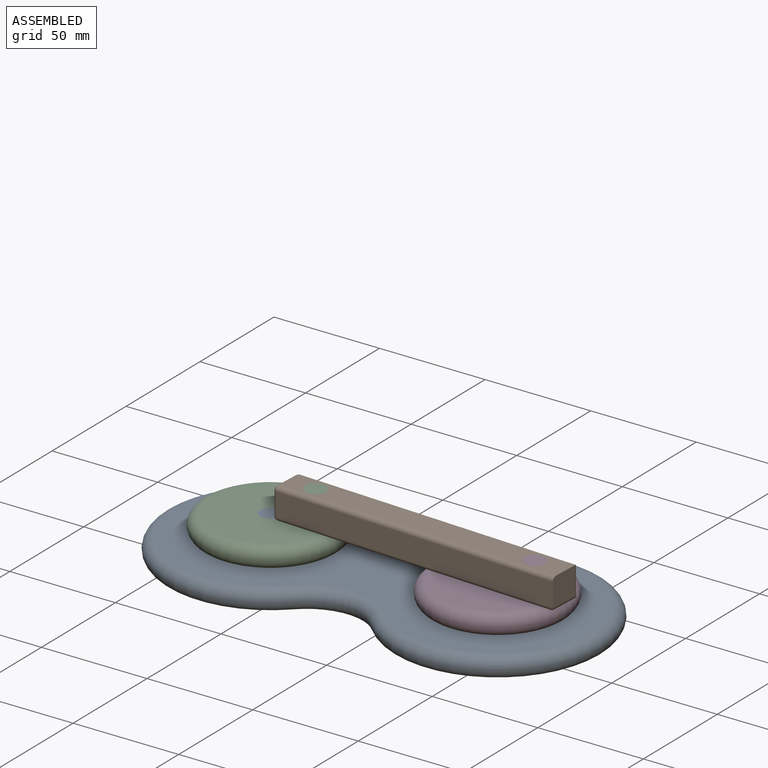
[diagram: assembled view]
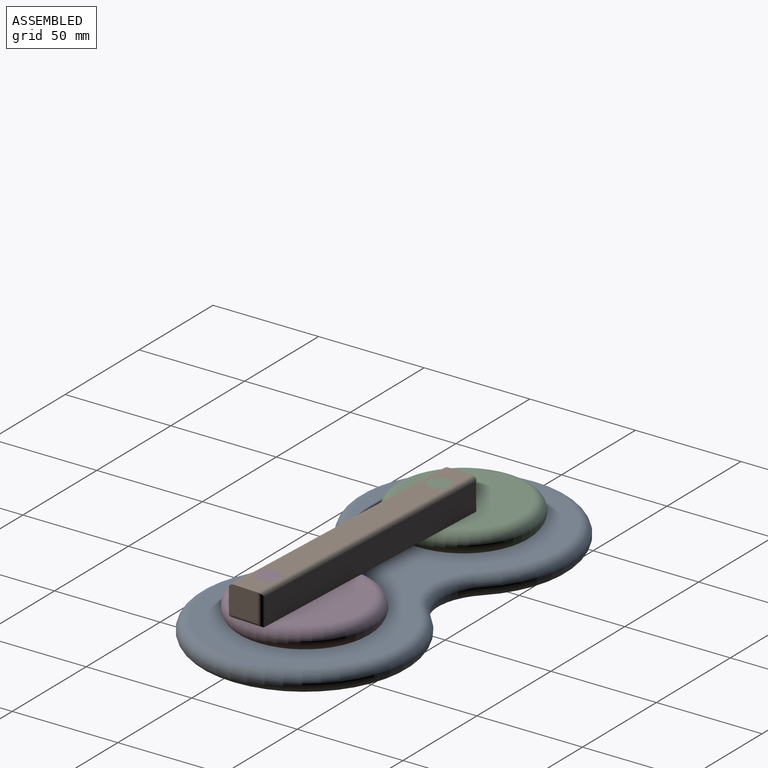
[diagram: assembled view, second angle]
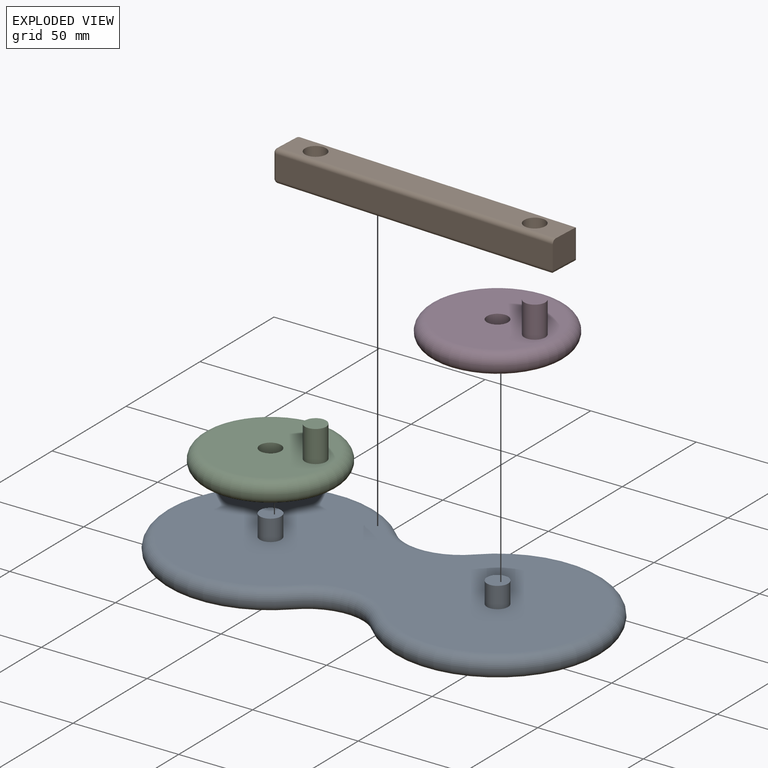
[diagram: exploded view]
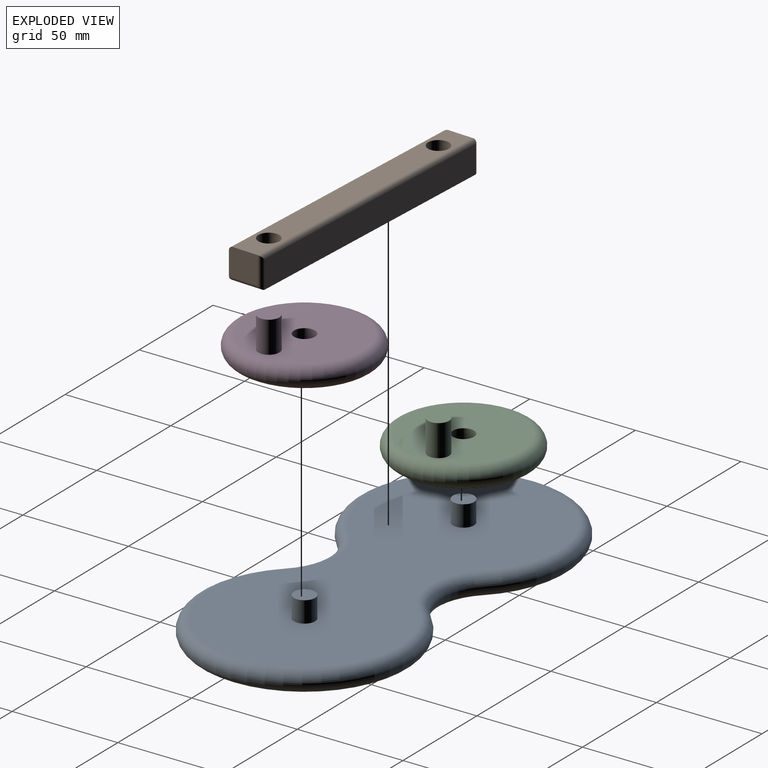
[diagram: exploded view, second angle]
ASSEMBLY  parts=4 mates=4
PART A: 10 faces, bbox 215.7x108.2x20 mm
  f0: plane 197.51x90mm, normal (0,0,1), area 13625.5mm2, adj f2,f4,f6,f7,f8,f9
  f1: plane 197.51x90mm, normal (0,0,-1), area 13782.5mm2, adj f6,f7,f8,f9
  f2: cylinder r=5mm len=10mm, axis (0,0,-1), area 314.2mm2, adj f0,f3
  f3: plane 10x10mm, normal (0,0,1), area 78.5mm2, adj f2
  f4: cylinder r=5mm len=10mm, axis (0,0,-1), area 314.2mm2, adj f0,f5
  f5: plane 10x10mm, normal (0,0,1), area 78.5mm2, adj f4
  f6: torus R=45mm, axis (0,0,1), area 3587.3mm2, adj f0,f1,f7,f8
  f7: torus R=30mm, axis (0,0,1), area 673.2mm2, adj f0,f1,f6,f9
  f8: torus R=30mm, axis (0,0,1), area 673.2mm2, adj f0,f1,f6,f9
  f9: torus R=45mm, axis (0,0,1), area 3587.3mm2, adj f0,f1,f7,f8
PART B: 20 faces, bbox 137.5x16x15 mm
  f0: plane 135.51x12mm, normal (0,0,1), area 1469mm2, adj f3,f6,f7,f13,f17,f19
  f1: plane 12x11mm, normal (-1,0,0), area 132mm2, adj f11,f12,f16,f17
  f2: plane 133.51x14mm, normal (0,0,-1), area 1712mm2, adj f3,f5,f7,f8,f10,f11
  f3: cylinder r=5mm len=15mm, axis (0,0,-1), area 471.2mm2, adj f0,f2
  f4: plane 135.51x11mm, normal (0,-1,0), area 1490.6mm2, adj f6,f10,f16,f19
  f5: plane 133.51x13mm, normal (0,1,0), area 1735.6mm2, adj f2,f9,f12,f13
  f6: plane 14x13mm, normal (1,0,0), area 181.1mm2, adj f0,f4,f8,f9,f19
  f7: cylinder r=5mm len=15mm, axis (0,0,-1), area 471.2mm2, adj f0,f2
  f8: cylinder r=2mm len=16mm, axis (0,1,0), area 45.7mm2, adj f2,f6,f9,f10
  f9: cylinder r=2mm len=15mm, axis (0,0,-1), area 42.6mm2, adj f5,f6,f8,f13
  f10: cylinder r=2mm len=135.51mm, axis (1,0,0), area 423.4mm2, adj f2,f4,f8,f14
  f11: cylinder r=2mm len=14mm, axis (0,-1,0), area 41.7mm2, adj f1,f2,f12,f14
  f12: cylinder r=2mm len=13mm, axis (0,0,1), area 38.6mm2, adj f1,f5,f11,f15
  f13: cylinder r=2mm len=135.51mm, axis (1,0,0), area 423.4mm2, adj f0,f5,f9,f15
  f14: sphere r=2mm, area 6.3mm2, adj f10,f11,f16
  f15: sphere r=2mm, area 6.3mm2, adj f12,f13,f17
  f16: cylinder r=2mm len=11mm, axis (0,0,-1), area 34.6mm2, adj f1,f4,f14,f18
  f17: cylinder r=2mm len=12mm, axis (0,1,0), area 37.7mm2, adj f0,f1,f15,f18
  f18: sphere r=2mm, area 6.3mm2, adj f16,f17,f19
  f19: cylinder r=2mm len=135.51mm, axis (-1,0,0), area 425.7mm2, adj f0,f4,f6,f18
PART C: 6 faces, bbox 70.4x70.4x25 mm
  f0: cylinder r=5mm len=10mm, axis (0,0,-1), area 314.2mm2, adj f1,f2
  f1: plane 55x55mm, normal (0,0,1), area 2218.7mm2, adj f0,f3,f5
  f2: plane 55x55mm, normal (0,0,-1), area 2297.3mm2, adj f0,f5
  f3: cylinder r=5mm len=15mm, axis (0,0,-1), area 471.2mm2, adj f1,f4
  f4: plane 10x10mm, normal (0,0,1), area 78.5mm2, adj f3
  f5: torus R=27.5mm, axis (0,0,1), area 3028.3mm2, adj f1,f2
PART D: 6 faces, bbox 70.4x70.4x25 mm
  f0: cylinder r=5mm len=10mm, axis (0,0,-1), area 314.2mm2, adj f1,f2
  f1: plane 55x55mm, normal (0,0,1), area 2218.7mm2, adj f0,f3,f5
  f2: plane 55x55mm, normal (0,0,-1), area 2297.3mm2, adj f0,f3
  f3: torus R=27.5mm, axis (0,0,1), area 3028.3mm2, adj f1,f2
  f4: plane 10x10mm, normal (0,0,1), area 78.5mm2, adj f5
  f5: cylinder r=5mm len=15mm, axis (0,0,-1), area 471.2mm2, adj f1,f4
PLACE A t=(-15.12,10.45,11.25)mm fixed
PLACE B rot(axis=(0,0,-1),2.7deg) t=(24.69,9.01,11.25)mm
PLACE C rot(axis=(0,0,-1),174deg) t=(-122.33,4.81,11.25)mm
PLACE D rot(axis=(0,0,1),171.2deg) t=(91.76,2.26,11.25)mm
MATE revolute B.f7 <-> C.f3  axis (0,0,-1) through (-48.98,12.54,31.25)mm
MATE revolute D.f0 <-> A.f4  axis (0,0,-1) through (38.64,10.45,21.25)mm
MATE revolute C.f0 <-> A.f2  axis (0,0,-1) through (-68.87,10.45,21.25)mm
MATE revolute B.f3 <-> D.f5  axis (0,0,-1) through (58.4,7.4,31.25)mm
